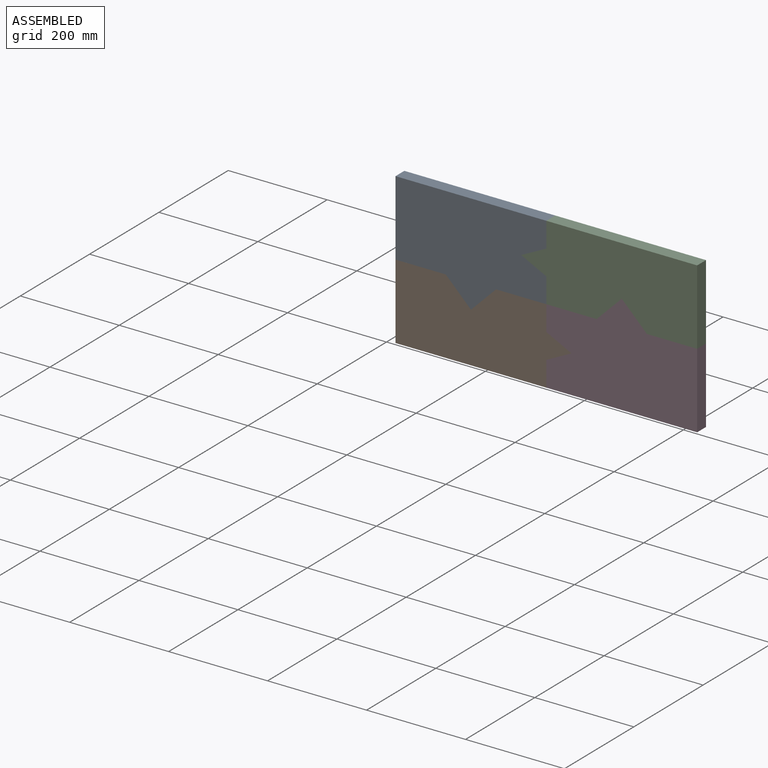
[diagram: assembled view]
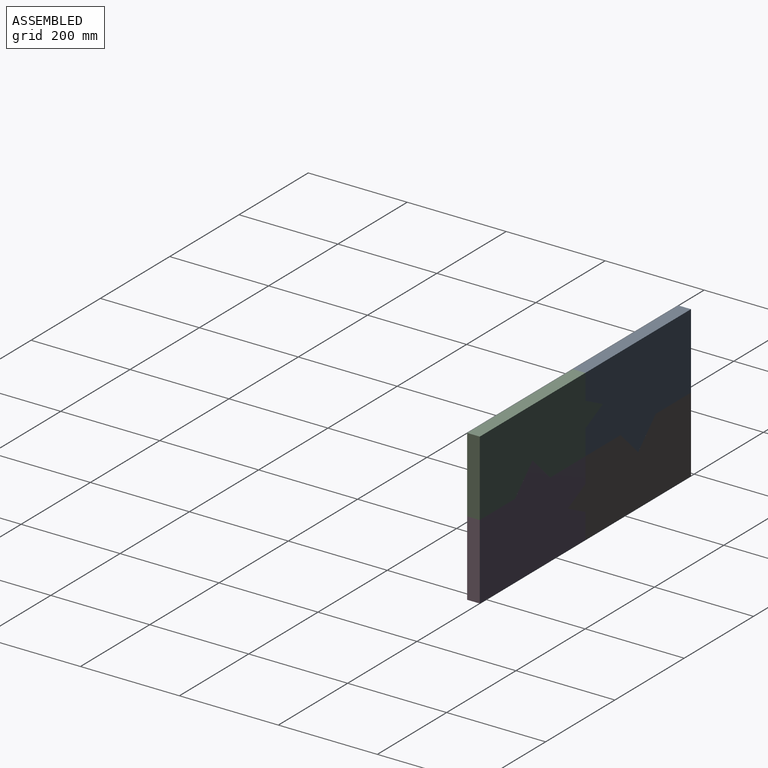
[diagram: assembled view, second angle]
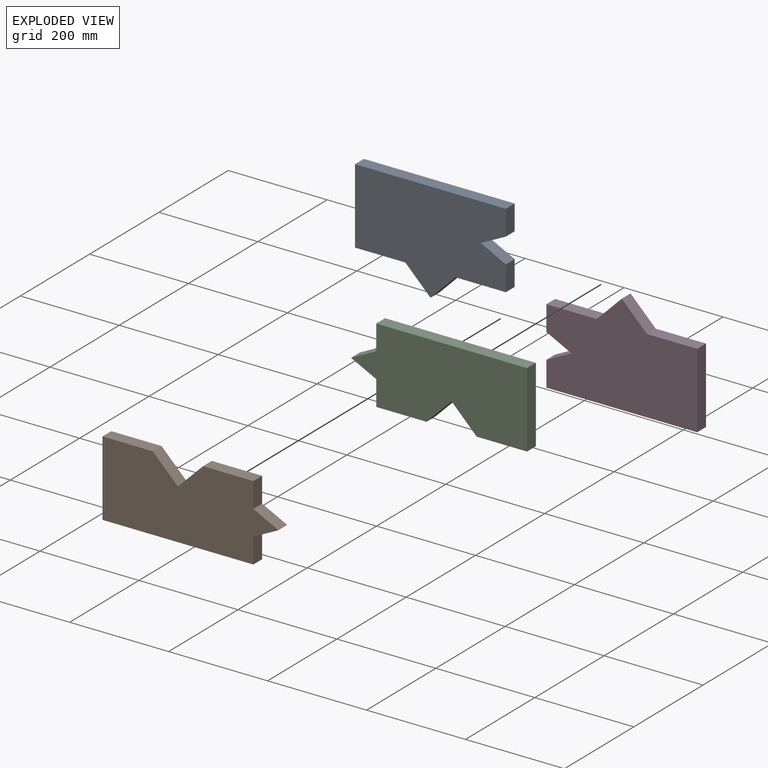
[diagram: exploded view]
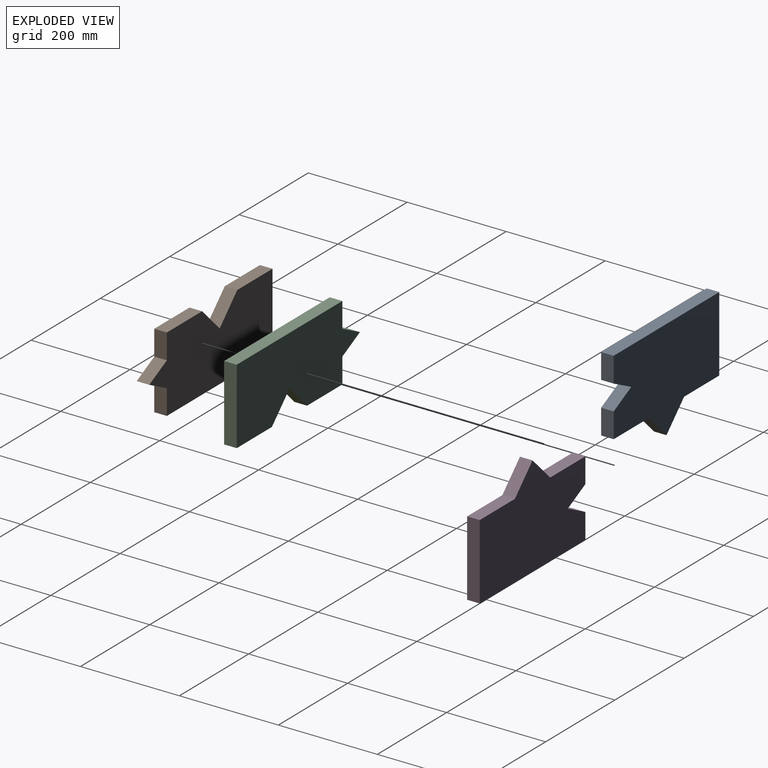
[diagram: exploded view, second angle]
ASSEMBLY  parts=4 mates=3
PART A: 12 faces, bbox 304.8x25.4x203.2 mm
  f0: plane 50.8x25.4mm, normal (1,0,0), area 1290.3mm2, adj f1,f9,f10,f11
  f1: plane 50.8x25.4mm, normal (0.45,0,0.89), area 1442.6mm2, adj f0,f2,f10,f11
  f2: plane 50.8x25.4mm, normal (0.45,0,-0.89), area 1442.6mm2, adj f1,f3,f10,f11
  f3: plane 50.8x25.4mm, normal (1,0,0), area 1290.3mm2, adj f2,f4,f10,f11
  f4: plane 304.8x25.4mm, normal (0,0,1), area 7741.9mm2, adj f3,f5,f10,f11
  f5: plane 152.4x25.4mm, normal (-1,0,0), area 3871mm2, adj f4,f6,f10,f11
  f6: plane 101.6x25.4mm, normal (0,0,-1), area 2580.6mm2, adj f5,f7,f10,f11
  f7: plane 50.8x50.8mm, normal (-0.71,0,-0.71), area 1824.8mm2, adj f6,f8,f10,f11
  f8: plane 50.8x50.8mm, normal (0.71,0,-0.71), area 1824.8mm2, adj f7,f9,f10,f11
  f9: plane 101.6x25.4mm, normal (0,0,-1), area 2580.6mm2, adj f0,f8,f10,f11
  f10: plane 304.8x203.2mm, normal (0,-1,0), area 47741.8mm2, adj f0,f1,f2,f3,f4,f5,f6,f7
  f11: plane 304.8x203.2mm, normal (0,1,0), area 47741.8mm2, adj f0,f1,f2,f3,f4,f5,f6,f7
PART B: 12 faces, bbox 355.6x25.4x152.4 mm
  f0: plane 50.8x25.4mm, normal (1,0,0), area 1290.3mm2, adj f1,f9,f10,f11
  f1: plane 50.8x25.4mm, normal (0.45,0,-0.89), area 1442.6mm2, adj f0,f2,f10,f11
  f2: plane 50.8x25.4mm, normal (0.45,0,0.89), area 1442.6mm2, adj f1,f3,f10,f11
  f3: plane 50.8x25.4mm, normal (1,0,0), area 1290.3mm2, adj f2,f4,f10,f11
  f4: plane 101.6x25.4mm, normal (0,0,1), area 2580.6mm2, adj f3,f5,f10,f11
  f5: plane 50.8x50.8mm, normal (-0.71,0,0.71), area 1824.8mm2, adj f4,f6,f10,f11
  f6: plane 50.8x50.8mm, normal (0.71,0,0.71), area 1824.8mm2, adj f5,f7,f10,f11
  f7: plane 101.6x25.4mm, normal (0,0,1), area 2580.6mm2, adj f6,f8,f10,f11
  f8: plane 152.4x25.4mm, normal (-1,0,0), area 3871mm2, adj f7,f9,f10,f11
  f9: plane 304.8x25.4mm, normal (0,0,-1), area 7741.9mm2, adj f0,f8,f10,f11
  f10: plane 355.6x152.4mm, normal (0,-1,0), area 45161.2mm2, adj f0,f1,f2,f3,f4,f5,f6,f7
  f11: plane 355.6x152.4mm, normal (0,1,0), area 45161.2mm2, adj f0,f1,f2,f3,f4,f5,f6,f7
PART C: 12 faces, bbox 355.6x25.4x152.4 mm
  f0: plane 50.8x25.4mm, normal (-1,0,0), area 1290.3mm2, adj f1,f9,f10,f11
  f1: plane 50.8x25.4mm, normal (-0.45,0,0.89), area 1442.6mm2, adj f0,f2,f10,f11
  f2: plane 50.8x25.4mm, normal (-0.45,0,-0.89), area 1442.6mm2, adj f1,f3,f10,f11
  f3: plane 50.8x25.4mm, normal (-1,0,0), area 1290.3mm2, adj f2,f4,f10,f11
  f4: plane 101.6x25.4mm, normal (0,0,-1), area 2580.6mm2, adj f3,f5,f10,f11
  f5: plane 50.8x50.8mm, normal (0.71,0,-0.71), area 1824.8mm2, adj f4,f6,f10,f11
  f6: plane 50.8x50.8mm, normal (-0.71,0,-0.71), area 1824.8mm2, adj f5,f7,f10,f11
  f7: plane 101.6x25.4mm, normal (0,0,-1), area 2580.6mm2, adj f6,f8,f10,f11
  f8: plane 152.4x25.4mm, normal (1,0,0), area 3871mm2, adj f7,f9,f10,f11
  f9: plane 304.8x25.4mm, normal (0,0,1), area 7741.9mm2, adj f0,f8,f10,f11
  f10: plane 355.6x152.4mm, normal (0,-1,0), area 45161.2mm2, adj f0,f1,f2,f3,f4,f5,f6,f7
  f11: plane 355.6x152.4mm, normal (0,1,0), area 45161.2mm2, adj f0,f1,f2,f3,f4,f5,f6,f7
PART D: 12 faces, bbox 304.8x25.4x203.2 mm
  f0: plane 50.8x50.8mm, normal (-0.71,0,0.71), area 1824.8mm2, adj f1,f9,f10,f11
  f1: plane 101.6x25.4mm, normal (0,0,1), area 2580.6mm2, adj f0,f2,f10,f11
  f2: plane 50.8x25.4mm, normal (-1,0,0), area 1290.3mm2, adj f1,f3,f10,f11
  f3: plane 50.8x25.4mm, normal (-0.45,0,-0.89), area 1442.6mm2, adj f2,f4,f10,f11
  f4: plane 50.8x25.4mm, normal (-0.45,0,0.89), area 1442.6mm2, adj f3,f5,f10,f11
  f5: plane 50.8x25.4mm, normal (-1,0,0), area 1290.3mm2, adj f4,f6,f10,f11
  f6: plane 304.8x25.4mm, normal (0,0,-1), area 7741.9mm2, adj f5,f7,f10,f11
  f7: plane 152.4x25.4mm, normal (1,0,0), area 3871mm2, adj f6,f8,f10,f11
  f8: plane 101.6x25.4mm, normal (0,0,1), area 2580.6mm2, adj f7,f9,f10,f11
  f9: plane 50.8x50.8mm, normal (0.71,0,0.71), area 1824.8mm2, adj f0,f8,f10,f11
  f10: plane 304.8x203.2mm, normal (0,-1,0), area 47741.8mm2, adj f0,f1,f2,f3,f4,f5,f6,f7
  f11: plane 304.8x203.2mm, normal (0,1,0), area 47741.8mm2, adj f0,f1,f2,f3,f4,f5,f6,f7
PLACE A t=(-451.38,12.7,-85.32)mm
PLACE B t=(-426.07,12.7,-257.83)mm
PLACE C t=(-132.96,12.7,-106)mm
PLACE D t=(-110.76,12.7,-251.05)mm
MATE fastened A.f10 <-> B.f10  axis (0,-1,0) through (-420.38,-12.7,-207.03)mm
MATE fastened D.f10 <-> C.f10  axis (0,-1,0) through (-115.58,-12.7,-105.43)mm
MATE fastened A.f10 <-> C.f10  axis (0,-1,0) through (-318.78,-12.7,-80.03)mm
